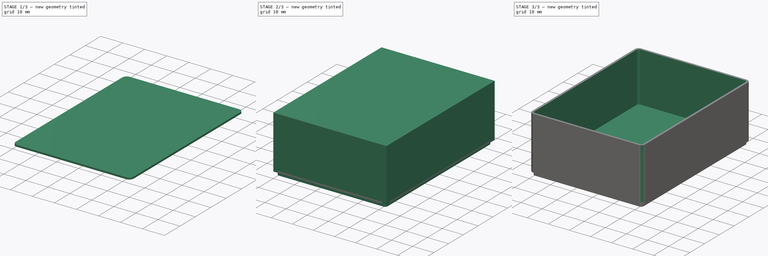
[diagram: build sequence overview — one tinted view per stage of 3, left to right]
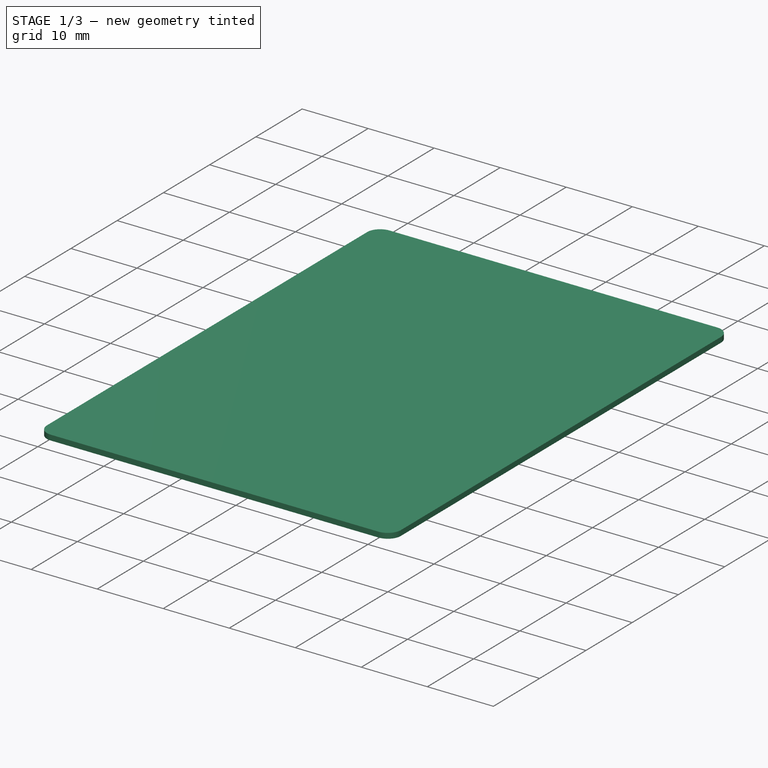
[diagram: stage 1 of 3 — iso view after this stage's code; geometry added in this stage tinted green]
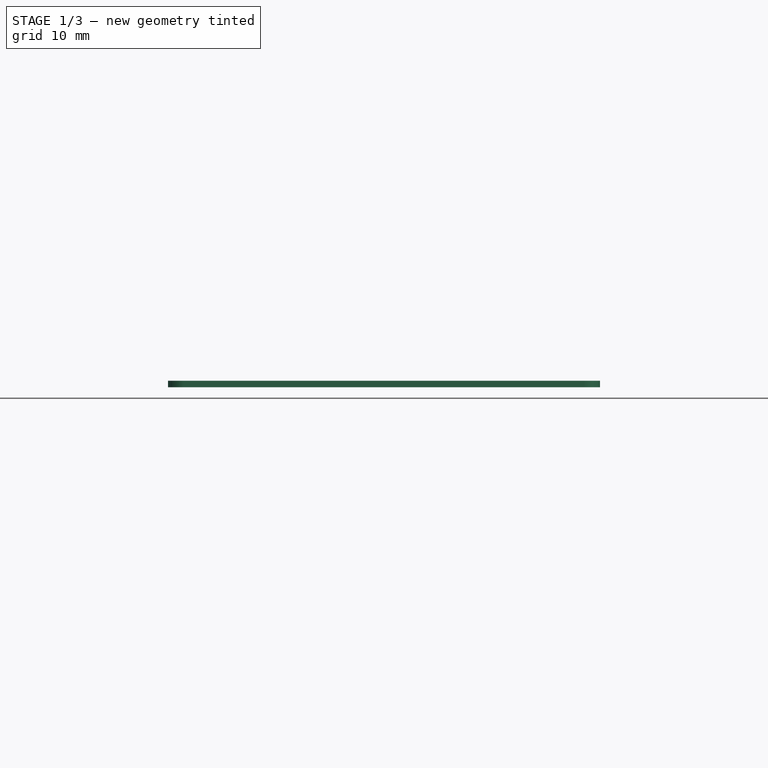
[diagram: stage 1 of 3 — front view after this stage's code; geometry added in this stage tinted green]
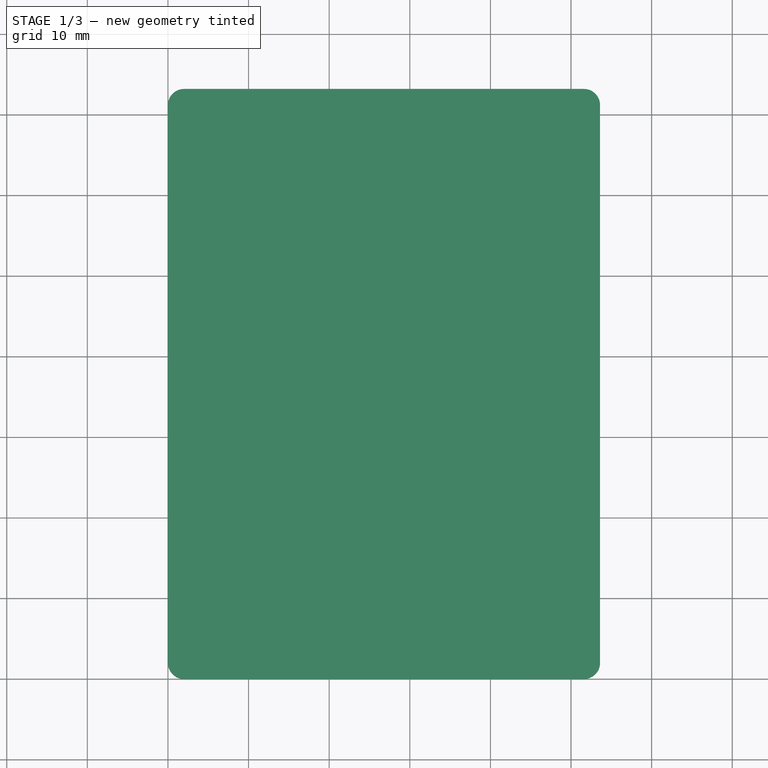
[diagram: stage 1 of 3 — top view after this stage's code; geometry added in this stage tinted green]
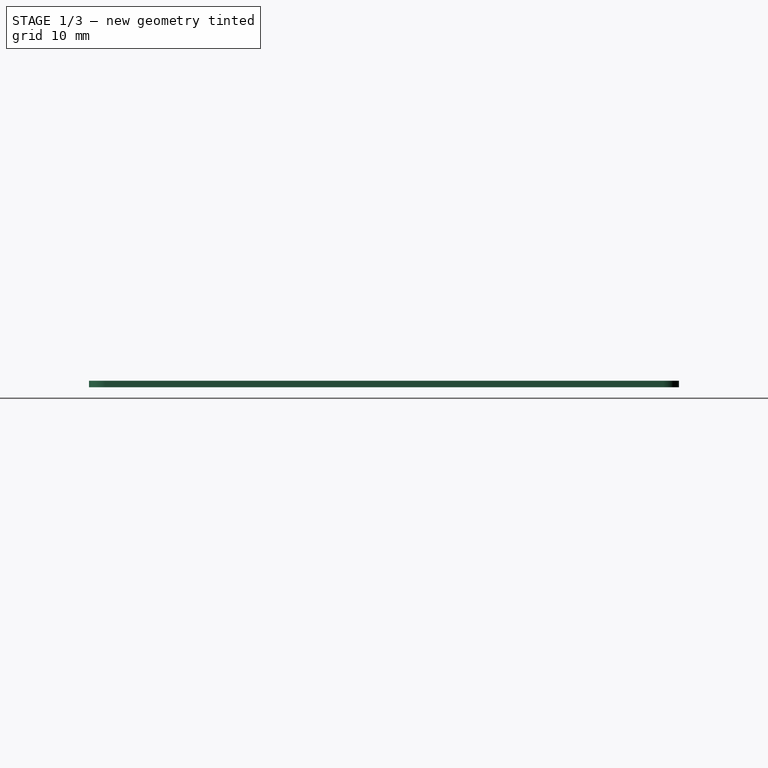
[diagram: stage 1 of 3 — right view after this stage's code; geometry added in this stage tinted green]
FCSTD DOCUMENT  (FreeCAD 0.19R24276 (Git))
Label: parametric_box
License: All rights reserved
LicenseURL: http://en.wikipedia.org/wiki/All_rights_reserved
objects: TechDraw::DrawProjGroupItem×18, PartDesign::AdditiveBox×2, PartDesign::Fillet×2, Sketcher::SketchObject×2, PartDesign::Body×2, TechDraw::DrawSVGTemplate×2, TechDraw::DrawProjGroup×2, TechDraw::DrawPage×2, Spreadsheet::Sheet×1, PartDesign::Pocket×1, PartDesign::Pad×1
note: 16 computed .brp shape members not serialized (recipe doc carries the construction recipe); baked Part::Feature solids carry a one-line shape summary decoded from their .brp

FEATURE [PartDesign::Body] Body  label="outer_shell"
  Group = -> [Box,Fillet,Sketch,Pocket]
  Origin = -> Origin
  Tip = -> Pocket
FEATURE [PartDesign::AdditiveBox] Box001
  AttacherType = Attacher::AttachEngine3D
  Height = 0.8
  Length = 53.6
  Width = 73.2
  expr: Height = Spreadsheet.thickness / 2
  expr: Width = Spreadsheet.width + Spreadsheet.thickness * 2
  expr: Length = Spreadsheet.depth + Spreadsheet.thickness
FEATURE [PartDesign::Fillet] Fillet001
  Base = -> Box001 [Edge1,Edge5,Edge7,Edge3]
  BaseFeature = -> Box001
  Radius = 2
  SupportTransform = false
  expr: Radius = Spreadsheet.outer_radius
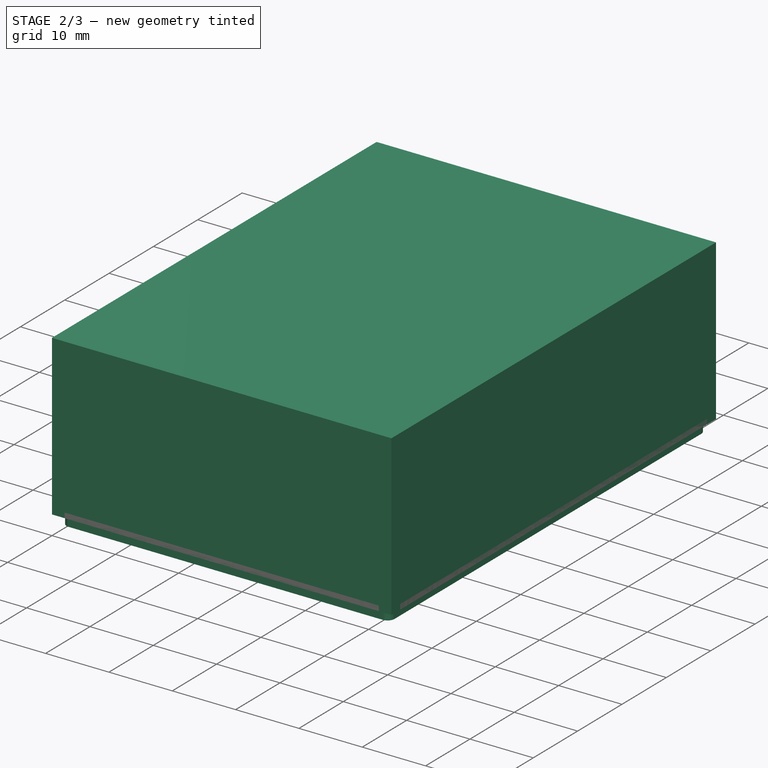
[diagram: stage 2 of 3 — iso view after this stage's code; geometry added in this stage tinted green]
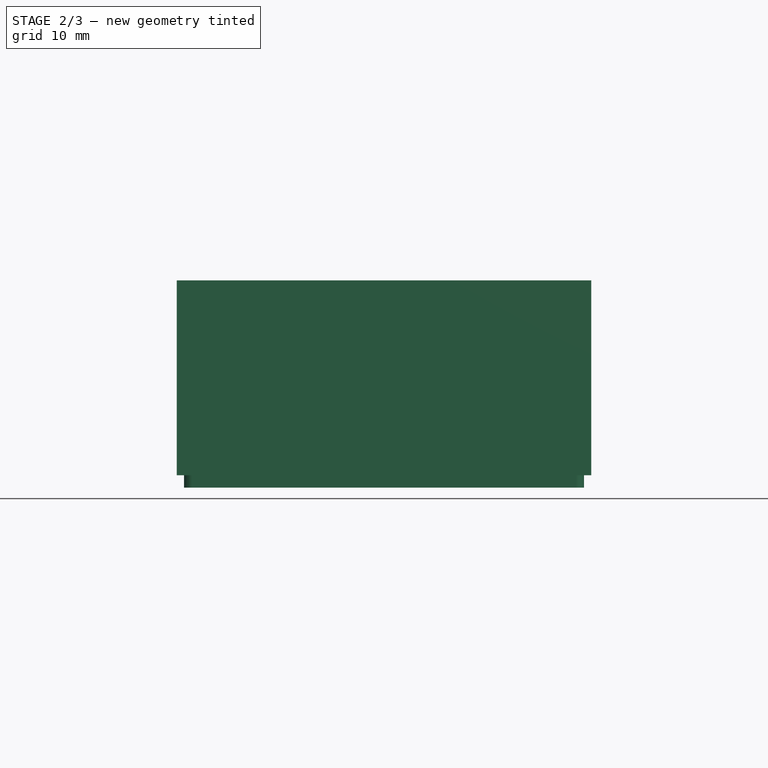
[diagram: stage 2 of 3 — front view after this stage's code; geometry added in this stage tinted green]
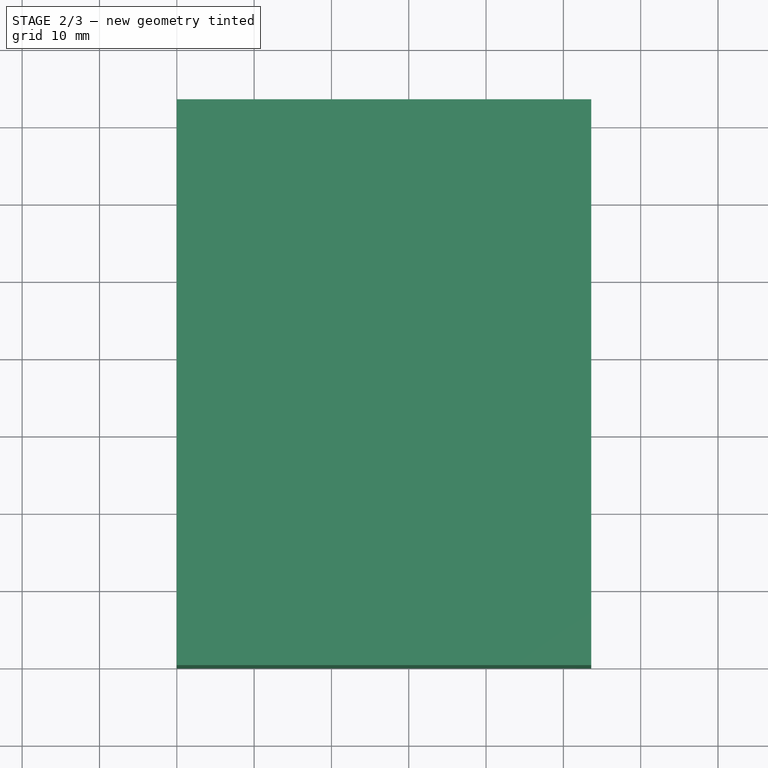
[diagram: stage 2 of 3 — top view after this stage's code; geometry added in this stage tinted green]
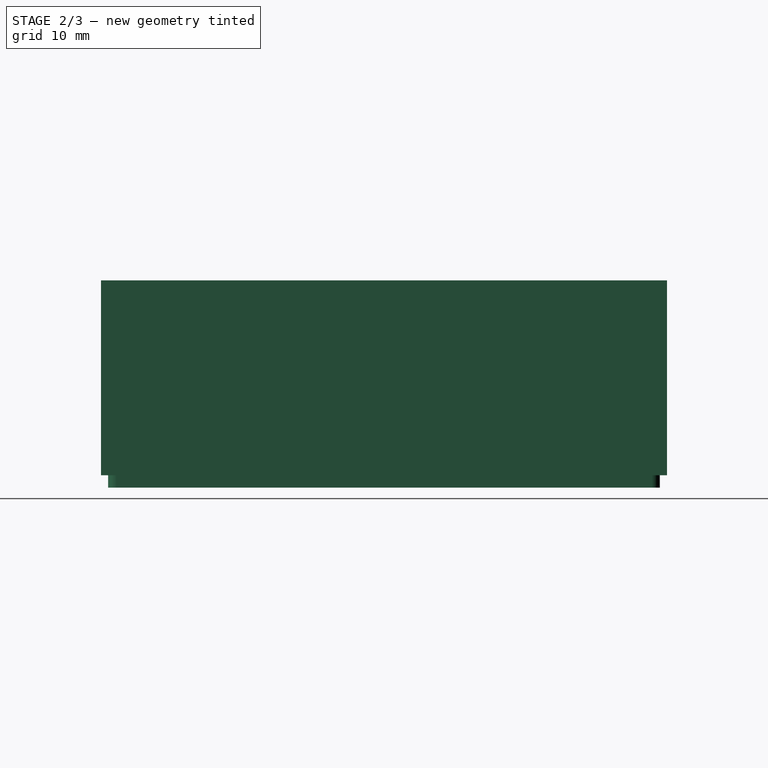
[diagram: stage 2 of 3 — right view after this stage's code; geometry added in this stage tinted green]
FEATURE [Spreadsheet::Sheet] Spreadsheet
  cells = A1=width; B1(width)=70; A2=height; B2(height)=22; A3=depth; B3(depth)=52; A4=thickness; B4(thickness)=1.6; A5=gap; B5(gap)=0.15; A6=outer_radius; B6(outer_radius)=2
FEATURE [PartDesign::AdditiveBox] Box
  AttacherType = Attacher::AttachEngine3D
  Height = 25.2
  Length = 53.6
  Width = 73.2
  expr: Height = Spreadsheet.height + Spreadsheet.thickness * 2
  expr: Width = Spreadsheet.width + Spreadsheet.thickness * 2
  expr: Length = Spreadsheet.depth + Spreadsheet.thickness
FEATURE [Sketcher::SketchObject] Sketch001
  ExternalGeometry = -> [Fillet001]
  FullyConstrained = true
  MapMode = 5
  Placement = pos=(0,0,0) rot=(1,0,0;3.14159rad)
  Support = -> [Fillet001]
  expr: Constraints[17] = Spreadsheet.outer_radius / 2 + Spreadsheet.gap / 2
  sketch-geometry (8):
    g0: LineSegment StartX=2 StartY=-0.925 StartZ=0 EndX=51.6 EndY=-0.925 EndZ=0
    g1: LineSegment StartX=52.675 StartY=-2 StartZ=0 EndX=52.675 EndY=-71.2 EndZ=0
    g2: LineSegment StartX=51.6 StartY=-72.275 StartZ=0 EndX=2 EndY=-72.275 EndZ=0
    g3: LineSegment StartX=0.925 StartY=-71.2 StartZ=0 EndX=0.925 EndY=-2 EndZ=0
    g4: ArcOfCircle CenterX=51.6 CenterY=-2 CenterZ=0 NormalX=0 NormalY=0 NormalZ=1 AngleXU=0 Radius=1.075 StartAngle=0 EndAngle=1.5708
    g5: ArcOfCircle CenterX=2 CenterY=-2 CenterZ=0 NormalX=0 NormalY=0 NormalZ=1 AngleXU=0 Radius=1.075 StartAngle=1.5708 EndAngle=3.14159
    g6: ArcOfCircle CenterX=2 CenterY=-71.2 CenterZ=0 NormalX=0 NormalY=0 NormalZ=1 AngleXU=0 Radius=1.075 StartAngle=3.14159 EndAngle=4.71239
    g7: ArcOfCircle CenterX=51.6 CenterY=-71.2 CenterZ=0 NormalX=0 NormalY=0 NormalZ=1 AngleXU=0 Radius=1.075 StartAngle=4.71239 EndAngle=6.28319
  constraints (18):
    c: Horizontal(g0)
    c: Horizontal(g2)
    c: Vertical(g1)
    c: Vertical(g3)
    c: Tangent(g0,g4) = 1.5708
    c: Tangent(g1,g4) = 1.5708
    c: Tangent(g0,g5) = 1.5708
    c: Tangent(g3,g5) = 1.5708
    c: Tangent(g3,g6) = 1.5708
    c: Tangent(g2,g6) = 1.5708
    c: Tangent(g2,g7) = 1.5708
    c: Tangent(g1,g7) = 1.5708
    c: Equal(g5,g6)
    c: Equal(g6,g4)
    c: Equal(g4,g7)
    c: Coincident(g4,g-3)
    c: Coincident(g6,g-4)
    c: Radius(g4) = 1.075
FEATURE [PartDesign::Pad] Pad
  BaseFeature = -> Fillet001
  Direction = (1,1,1)
  Length = 1.6
  Length2 = 100
  Profile = -> Sketch001
  Type = 0
  expr: Length = Spreadsheet.thickness
FEATURE [PartDesign::Body] Body001  label="box_lid"
  Group = -> [Box001,Fillet001,Sketch001,Pad]
  Origin = -> Origin001
  Placement = pos=(0,0,25.2) rot=(0,0,1;0rad)
  Tip = -> Pad
  expr: .Placement.Base.z = Spreadsheet.height + Spreadsheet.thickness * 2
FEATURE [TechDraw::DrawSVGTemplate] Template_Pocket
  Height = 210
  Orientation = 1
  Width = 297
FEATURE [TechDraw::DrawProjGroupItem] ProjItem  label="Front"
  CoarseView = false
  Direction = (0,-1,0)
  Focus = 100
  HardHidden = false
  IsoCount = 0
  IsoHidden = false
  IsoVisible = false
  LockPosition = true
  Perspective = false
  Rotation = 0
  RotationVector = (1,0,0)
  Scale = 0.75
  ScaleType = 2
  SeamHidden = false
  SeamVisible = true
  SmoothHidden = false
  SmoothVisible = true
  Source = -> [Pocket]
  Type = 0
  X = 0
  XDirection = (1,0,0)
  Y = 0
FEATURE [TechDraw::DrawProjGroupItem] ProjItem001  label="Right"
  CoarseView = false
  Direction = (1,-1e-16,0)
  Focus = 100
  HardHidden = false
  IsoCount = 0
  IsoHidden = false
  IsoVisible = false
  LockPosition = false
  Perspective = false
  Rotation = 0
  RotationVector = (1,0,0)
  Scale = 0.75
  ScaleType = 2
  SeamHidden = false
  SeamVisible = true
  SmoothHidden = false
  SmoothVisible = true
  Source = -> [Pocket]
  Type = 2
  X = -75.4516
  XDirection = (1e-16,1,0)
  Y = 0
FEATURE [TechDraw::DrawProjGroupItem] ProjItem002  label="Top"
  CoarseView = false
  Direction = (0,0,1)
  Focus = 100
  HardHidden = false
  IsoCount = 0
  IsoHidden = false
  IsoVisible = false
  LockPosition = false
  Perspective = false
  Rotation = 0
  RotationVector = (1,0,0)
  Scale = 0.75
  ScaleType = 2
  SeamHidden = false
  SeamVisible = true
  SmoothHidden = false
  SmoothVisible = true
  Source = -> [Pocket]
  Type = 4
  X = 0
  XDirection = (1,0,0)
  Y = -60.382
FEATURE [TechDraw::DrawProjGroupItem] ProjItem003  label="Left"
  CoarseView = false
  Direction = (-1,-1e-16,0)
  Focus = 100
  HardHidden = false
  IsoCount = 0
  IsoHidden = false
  IsoVisible = false
  LockPosition = false
  Perspective = false
  Rotation = 0
  RotationVector = (1,0,0)
  Scale = 0.75
  ScaleType = 2
  SeamHidden = false
  SeamVisible = true
  SmoothHidden = false
  SmoothVisible = true
  Source = -> [Pocket]
  Type = 1
  X = 75.4516
  XDirection = (1e-16,-1,0)
  Y = 0
FEATURE [TechDraw::DrawProjGroupItem] ProjItem004  label="Bottom"
  CoarseView = false
  Direction = (0,0,-1)
  Focus = 100
  HardHidden = false
  IsoCount = 0
  IsoHidden = false
  IsoVisible = false
  LockPosition = false
  Perspective = false
  Rotation = 0
  RotationVector = (1,0,0)
  Scale = 0.75
  ScaleType = 2
  SeamHidden = false
  SeamVisible = true
  SmoothHidden = false
  SmoothVisible = true
  Source = -> [Pocket]
  Type = 5
  X = 0
  XDirection = (1,0,0)
  Y = 64.0335
FEATURE [TechDraw::DrawProjGroupItem] ProjItem005  label="FrontBottomLeft"
  CoarseView = false
  Direction = (-0.57735,-0.57735,-0.57735)
  Focus = 100
  HardHidden = false
  IsoCount = 0
  IsoHidden = false
  IsoVisible = false
  LockPosition = false
  Perspective = false
  Rotation = 0
  RotationVector = (1,0,0)
  Scale = 0.75
  ScaleType = 2
  SeamHidden = false
  SeamVisible = true
  SmoothHidden = false
  SmoothVisible = true
  Source = -> [Pocket]
  Type = 8
  X = 79.5753
  XDirection = (0.707107,-0.707107,0)
  Y = 56.6895
FEATURE [TechDraw::DrawProjGroupItem] ProjItem006  label="FrontTopRight"
  CoarseView = false
  Direction = (0.57735,-0.57735,0.57735)
  Focus = 100
  HardHidden = false
  IsoCount = 0
  IsoHidden = false
  IsoVisible = false
  LockPosition = false
  Perspective = false
  Rotation = 0
  RotationVector = (1,0,0)
  Scale = 0.75
  ScaleType = 2
  SeamHidden = false
  SeamVisible = true
  SmoothHidden = false
  SmoothVisible = true
  Source = -> [Pocket]
  Type = 7
  X = -81.0032
  XDirection = (0.707107,0.707107,0)
  Y = -58.6828
FEATURE [TechDraw::DrawProjGroupItem] ProjItem007  label="FrontTopLeft"
  CoarseView = false
  Direction = (-0.57735,-0.57735,0.57735)
  Focus = 100
  HardHidden = false
  IsoCount = 0
  IsoHidden = false
  IsoVisible = false
  LockPosition = false
  Perspective = false
  Rotation = 0
  RotationVector = (1,0,0)
  Scale = 0.75
  ScaleType = 2
  SeamHidden = false
  SeamVisible = true
  SmoothHidden = false
  SmoothVisible = true
  Source = -> [Pocket]
  Type = 6
  X = 81.4792
  XDirection = (0.707107,-0.707107,0)
  Y = -63.202
FEATURE [TechDraw::DrawProjGroupItem] ProjItem008  label="FrontBottomRight"
  CoarseView = false
  Direction = (0.57735,-0.57735,-0.57735)
  Focus = 100
  HardHidden = false
  IsoCount = 0
  IsoHidden = false
  IsoVisible = false
  LockPosition = false
  Perspective = false
  Rotation = 0
  RotationVector = (1,0,0)
  Scale = 0.75
  ScaleType = 2
  SeamHidden = false
  SeamVisible = true
  SmoothHidden = false
  SmoothVisible = true
  Source = -> [Pocket]
  Type = 9
  X = -81.4792
  XDirection = (0.707107,0.707107,0)
  Y = 62.8769
FEATURE [TechDraw::DrawProjGroup] ProjGroup_Pocket
  Anchor = -> ProjItem
  AutoDistribute = true
  LockPosition = false
  ProjectionType = 0
  Rotation = 0
  Scale = 0.75
  ScaleType = 1
  Source = -> [Pocket]
  Views = -> [ProjItem,ProjItem001,ProjItem002,ProjItem003,ProjItem004,ProjItem005,ProjItem006,ProjItem007,ProjItem008]
  X = 148.5
  Y = 105
  spacingX = 15
  spacingY = 15
FEATURE [TechDraw::DrawPage] Page_Pocket
  KeepUpdated = true
  NextBalloonIndex = 1
  ProjectionType = 0
  Template = -> Template_Pocket
  Views = -> [ProjGroup_Pocket]
FEATURE [TechDraw::DrawSVGTemplate] Template_Pad
  Height = 210
  Orientation = 1
  Width = 297
FEATURE [TechDraw::DrawProjGroupItem] ProjItem009  label="Front001"
  CoarseView = false
  Direction = (0,-1,0)
  Focus = 100
  HardHidden = false
  IsoCount = 0
  IsoHidden = false
  IsoVisible = false
  LockPosition = true
  Perspective = false
  Rotation = 0
  RotationVector = (1,0,0)
  Scale = 0.75
  ScaleType = 2
  SeamHidden = false
  SeamVisible = true
  SmoothHidden = false
  SmoothVisible = true
  Source = -> [Pad]
  Type = 0
  X = 0
  XDirection = (1,0,0)
  Y = 0
FEATURE [TechDraw::DrawProjGroupItem] ProjItem010  label="Right001"
  CoarseView = false
  Direction = (1,-1e-16,0)
  Focus = 100
  HardHidden = false
  IsoCount = 0
  IsoHidden = false
  IsoVisible = false
  LockPosition = false
  Perspective = false
  Rotation = 0
  RotationVector = (1,0,0)
  Scale = 0.75
  ScaleType = 2
  SeamHidden = false
  SeamVisible = true
  SmoothHidden = false
  SmoothVisible = true
  Source = -> [Pad]
  Type = 2
  X = -75.4516
  XDirection = (1e-16,1,0)
  Y = 0
FEATURE [TechDraw::DrawProjGroupItem] ProjItem011  label="Top001"
  CoarseView = false
  Direction = (0,0,1)
  Focus = 100
  HardHidden = false
  IsoCount = 0
  IsoHidden = false
  IsoVisible = false
  LockPosition = false
  Perspective = false
  Rotation = 0
  RotationVector = (1,0,0)
  Scale = 0.75
  ScaleType = 2
  SeamHidden = false
  SeamVisible = true
  SmoothHidden = false
  SmoothVisible = true
  Source = -> [Pad]
  Type = 4
  X = 0
  XDirection = (1,0,0)
  Y = -57.0164
FEATURE [TechDraw::DrawProjGroupItem] ProjItem012  label="Left001"
  CoarseView = false
  Direction = (-1,-1e-16,0)
  Focus = 100
  HardHidden = false
  IsoCount = 0
  IsoHidden = false
  IsoVisible = false
  LockPosition = false
  Perspective = false
  Rotation = 0
  RotationVector = (1,0,0)
  Scale = 0.75
  ScaleType = 2
  SeamHidden = false
  SeamVisible = true
  SmoothHidden = false
  SmoothVisible = true
  Source = -> [Pad]
  Type = 1
  X = 75.4516
  XDirection = (1e-16,-1,0)
  Y = 0
FEATURE [TechDraw::DrawProjGroupItem] ProjItem013  label="Bottom001"
  CoarseView = false
  Direction = (0,0,-1)
  Focus = 100
  HardHidden = false
  IsoCount = 0
  IsoHidden = false
  IsoVisible = false
  LockPosition = false
  Perspective = false
  Rotation = 0
  RotationVector = (1,0,0)
  Scale = 0.75
  ScaleType = 2
  SeamHidden = false
  SeamVisible = true
  SmoothHidden = false
  SmoothVisible = true
  Source = -> [Pad]
  Type = 5
  X = 0
  XDirection = (1,0,0)
  Y = 55.4719
FEATURE [TechDraw::DrawProjGroupItem] ProjItem014  label="FrontBottomLeft001"
  CoarseView = false
  Direction = (-0.57735,-0.57735,-0.57735)
  Focus = 100
  HardHidden = false
  IsoCount = 0
  IsoHidden = false
  IsoVisible = false
  LockPosition = false
  Perspective = false
  Rotation = 0
  RotationVector = (1,0,0)
  Scale = 0.75
  ScaleType = 2
  SeamHidden = false
  SeamVisible = true
  SmoothHidden = false
  SmoothVisible = true
  Source = -> [Pad]
  Type = 8
  X = 79.6273
  XDirection = (0.707107,-0.707107,0)
  Y = 47.9721
FEATURE [TechDraw::DrawProjGroupItem] ProjItem015  label="FrontTopRight001"
  CoarseView = false
  Direction = (0.57735,-0.57735,0.57735)
  Focus = 100
  HardHidden = false
  IsoCount = 0
  IsoHidden = false
  IsoVisible = false
  LockPosition = false
  Perspective = false
  Rotation = 0
  RotationVector = (1,0,0)
  Scale = 0.75
  ScaleType = 2
  SeamHidden = false
  SeamVisible = true
  SmoothHidden = false
  SmoothVisible = true
  Source = -> [Pad]
  Type = 7
  X = -81.0032
  XDirection = (0.707107,0.707107,0)
  Y = -51.261
FEATURE [TechDraw::DrawProjGroupItem] ProjItem016  label="FrontTopLeft001"
  CoarseView = false
  Direction = (-0.57735,-0.57735,0.57735)
  Focus = 100
  HardHidden = false
  IsoCount = 0
  IsoHidden = false
  IsoVisible = false
  LockPosition = false
  Perspective = false
  Rotation = 0
  RotationVector = (1,0,0)
  Scale = 0.75
  ScaleType = 2
  SeamHidden = false
  SeamVisible = true
  SmoothHidden = false
  SmoothVisible = true
  Source = -> [Pad]
  Type = 6
  X = 81.8722
  XDirection = (0.707107,-0.707107,0)
  Y = -53.5816
FEATURE [TechDraw::DrawProjGroupItem] ProjItem017  label="FrontBottomRight001"
  CoarseView = false
  Direction = (0.57735,-0.57735,-0.57735)
  Focus = 100
  HardHidden = false
  IsoCount = 0
  IsoHidden = false
  IsoVisible = false
  LockPosition = false
  Perspective = false
  Rotation = 0
  RotationVector = (1,0,0)
  Scale = 0.75
  ScaleType = 2
  SeamHidden = false
  SeamVisible = true
  SmoothHidden = false
  SmoothVisible = true
  Source = -> [Pad]
  Type = 9
  X = -83.6101
  XDirection = (0.707107,0.707107,0)
  Y = 54.1273
FEATURE [TechDraw::DrawProjGroup] ProjGroup_Pad
  Anchor = -> ProjItem009
  AutoDistribute = true
  LockPosition = false
  ProjectionType = 0
  Rotation = 0
  Scale = 0.75
  ScaleType = 1
  Source = -> [Pad]
  Views = -> [ProjItem009,ProjItem010,ProjItem011,ProjItem012,ProjItem013,ProjItem014,ProjItem015,ProjItem016,ProjItem017]
  X = 148.5
  Y = 105
  spacingX = 15
  spacingY = 15
FEATURE [TechDraw::DrawPage] Page_Pad
  KeepUpdated = true
  NextBalloonIndex = 1
  ProjectionType = 0
  Template = -> Template_Pad
  Views = -> [ProjGroup_Pad]
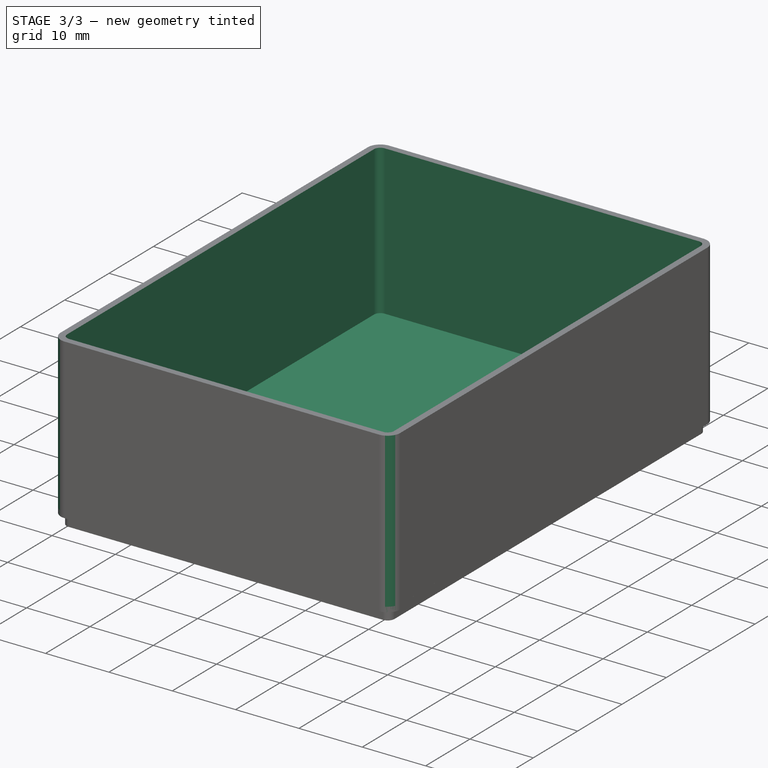
[diagram: stage 3 of 3 — iso view after this stage's code; geometry added in this stage tinted green]
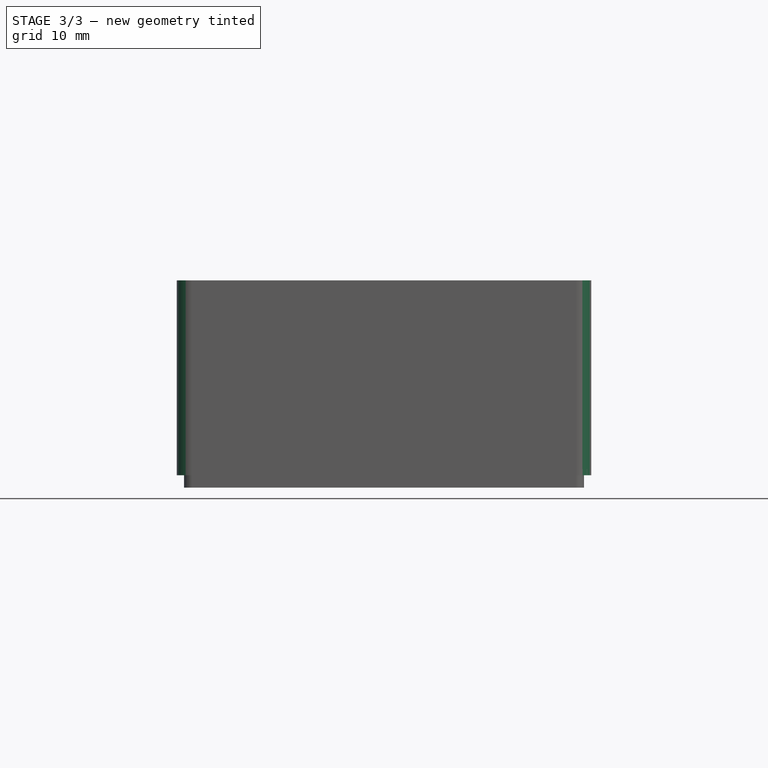
[diagram: stage 3 of 3 — front view after this stage's code; geometry added in this stage tinted green]
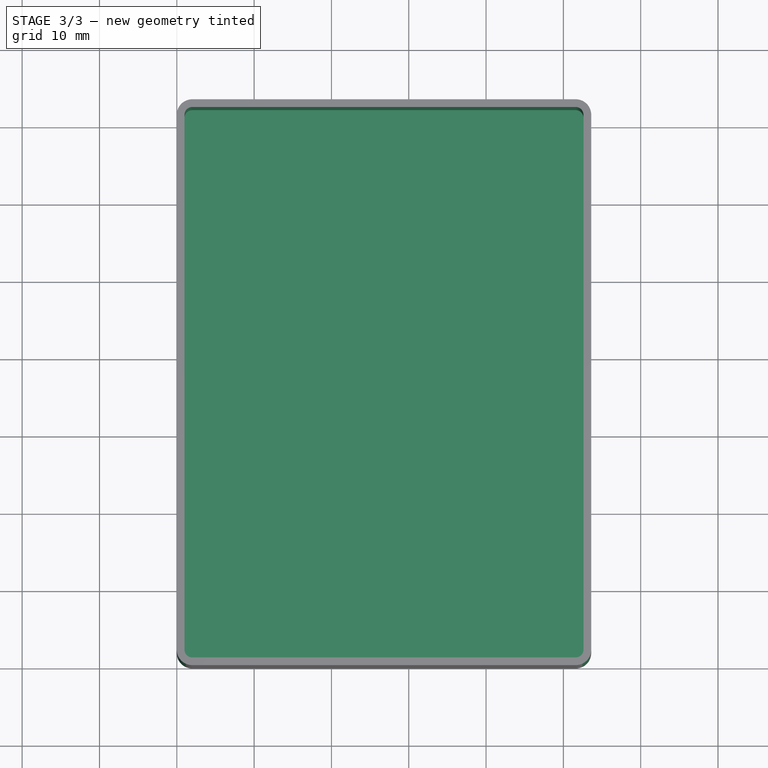
[diagram: stage 3 of 3 — top view after this stage's code; geometry added in this stage tinted green]
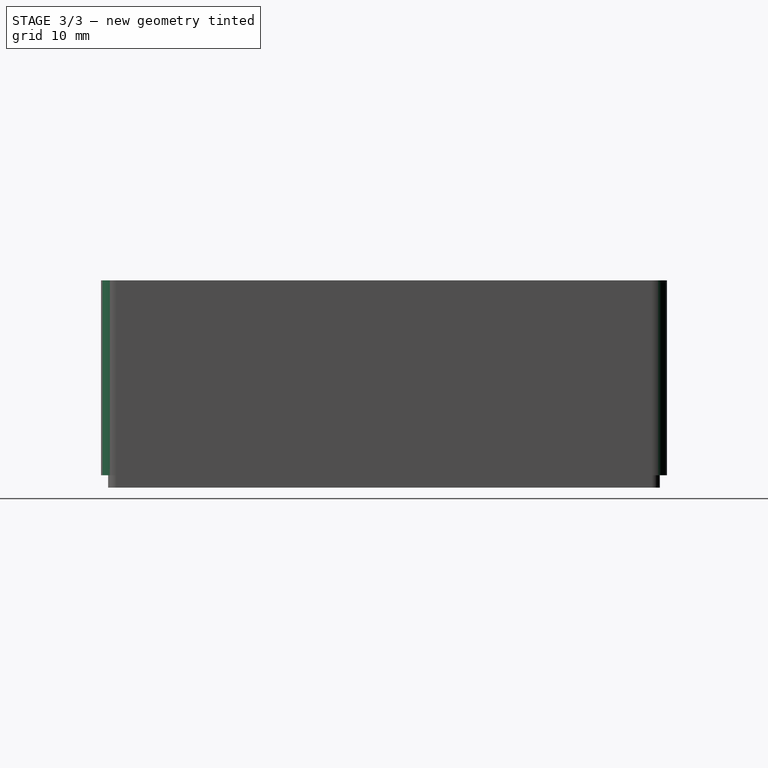
[diagram: stage 3 of 3 — right view after this stage's code; geometry added in this stage tinted green]
FEATURE [PartDesign::Fillet] Fillet
  Base = -> Box [Edge5,Edge7,Edge1,Edge3]
  BaseFeature = -> Box
  Radius = 2
  SupportTransform = false
  expr: Radius = Spreadsheet.outer_radius
FEATURE [Sketcher::SketchObject] Sketch
  ExternalGeometry = -> [Fillet]
  FullyConstrained = true
  MapMode = 5
  Placement = pos=(0,0,25.2) rot=(0,0,1;0rad)
  Support = -> [Fillet]
  expr: Constraints[17] = Spreadsheet.outer_radius / 2
  sketch-geometry (8):
    g0: LineSegment StartX=2 StartY=72.2 StartZ=0 EndX=51.6 EndY=72.2 EndZ=0
    g1: LineSegment StartX=52.6 StartY=71.2 StartZ=0 EndX=52.6 EndY=2 EndZ=0
    g2: LineSegment StartX=51.6 StartY=1 StartZ=0 EndX=2 EndY=1 EndZ=0
    g3: LineSegment StartX=1 StartY=2 StartZ=0 EndX=1 EndY=71.2 EndZ=0
    g4: ArcOfCircle CenterX=2 CenterY=71.2 CenterZ=0 NormalX=0 NormalY=0 NormalZ=1 AngleXU=0 Radius=1 StartAngle=1.5708 EndAngle=3.14159
    g5: ArcOfCircle CenterX=2 CenterY=2 CenterZ=0 NormalX=0 NormalY=0 NormalZ=1 AngleXU=0 Radius=1 StartAngle=3.14159 EndAngle=4.71239
    g6: ArcOfCircle CenterX=51.6 CenterY=2 CenterZ=0 NormalX=0 NormalY=0 NormalZ=1 AngleXU=0 Radius=1 StartAngle=4.71239 EndAngle=6.28319
    g7: ArcOfCircle CenterX=51.6 CenterY=71.2 CenterZ=0 NormalX=0 NormalY=0 NormalZ=1 AngleXU=0 Radius=1 StartAngle=-1.8e-15 EndAngle=1.5708
  constraints (18):
    c: Horizontal(g0)
    c: Horizontal(g2)
    c: Vertical(g1)
    c: Vertical(g3)
    c: Tangent(g0,g4) = 1.5708
    c: Tangent(g3,g4) = 1.5708
    c: Tangent(g3,g5) = 1.5708
    c: Tangent(g2,g5) = 1.5708
    c: Tangent(g2,g6) = 1.5708
    c: Tangent(g1,g6) = 1.5708
    c: Tangent(g1,g7) = 1.5708
    c: Tangent(g0,g7) = 1.5708
    c: Equal(g7,g4)
    c: Equal(g4,g5)
    c: Equal(g5,g6)
    c: Coincident(g5,g-4)
    c: Coincident(g7,g-3)
    c: Radius(g7) = 1
FEATURE [PartDesign::Pocket] Pocket
  BaseFeature = -> Fillet
  Length = 23.6
  Length2 = 100
  Profile = -> Sketch
  Type = 0
  expr: Length = Spreadsheet.height + Spreadsheet.thickness
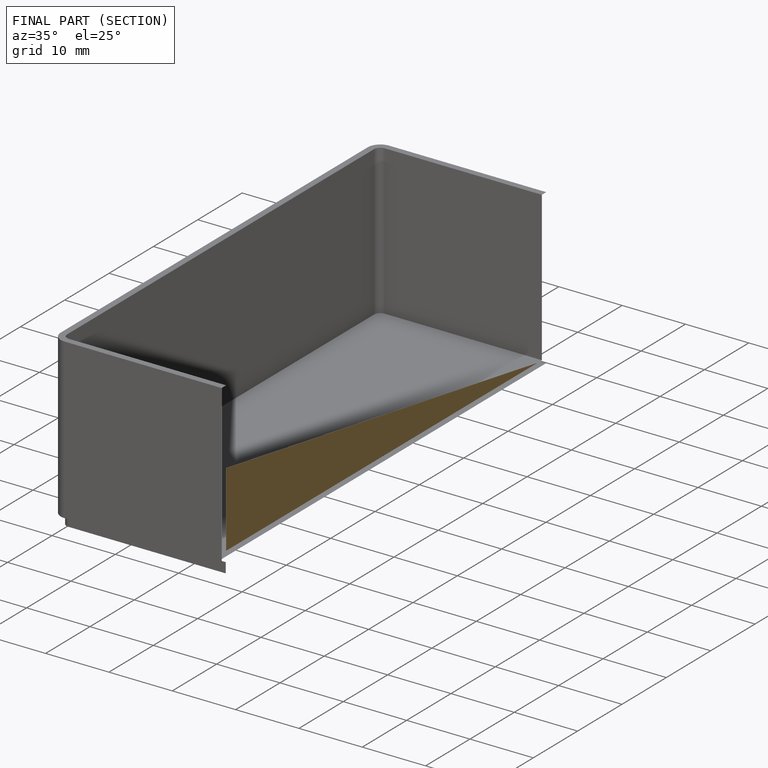
[diagram: finished part — half-section view (interior)]
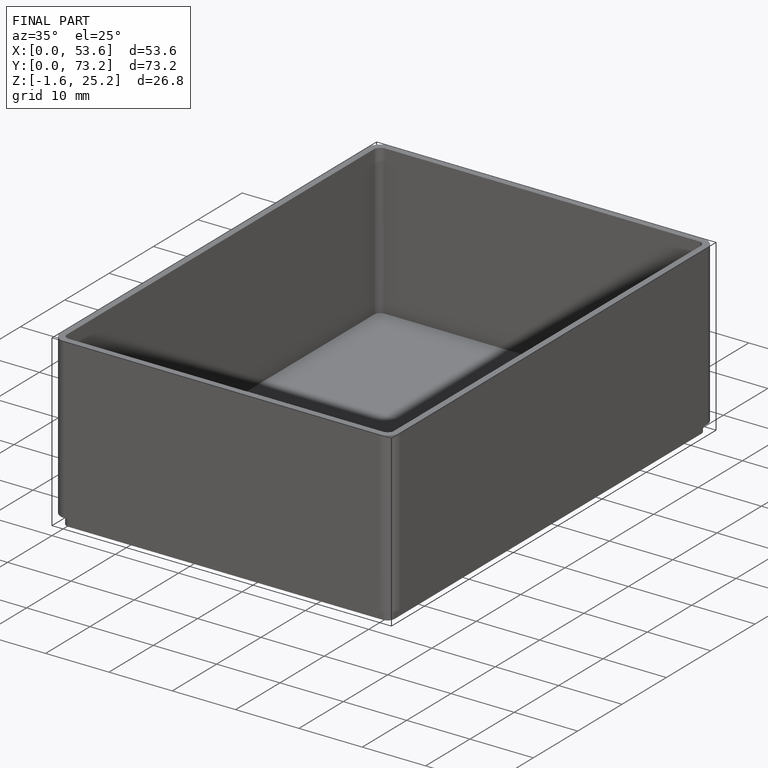
[diagram: finished part — iso view with bounding-box wireframe]
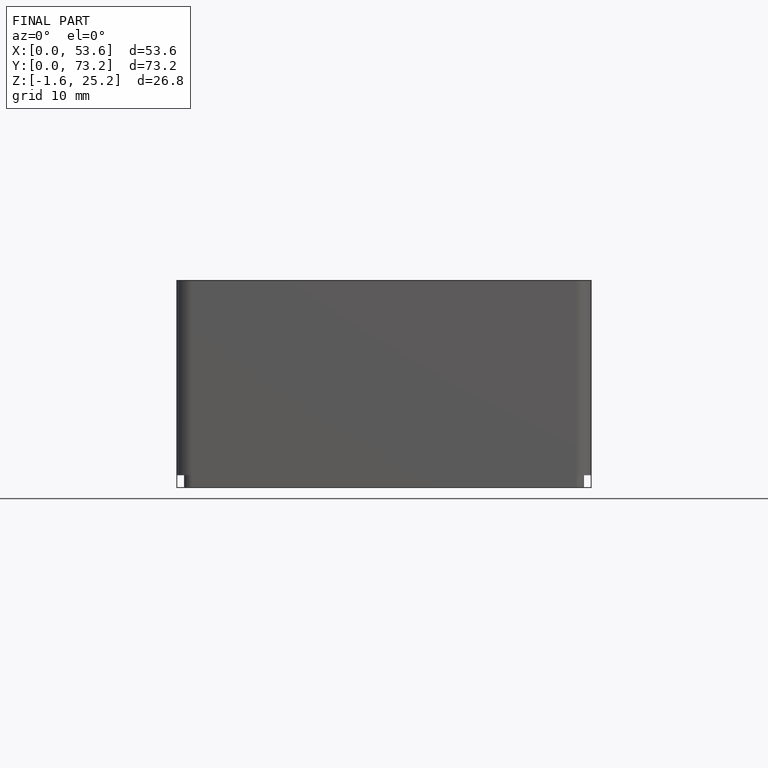
[diagram: finished part — front view with bounding-box wireframe]
